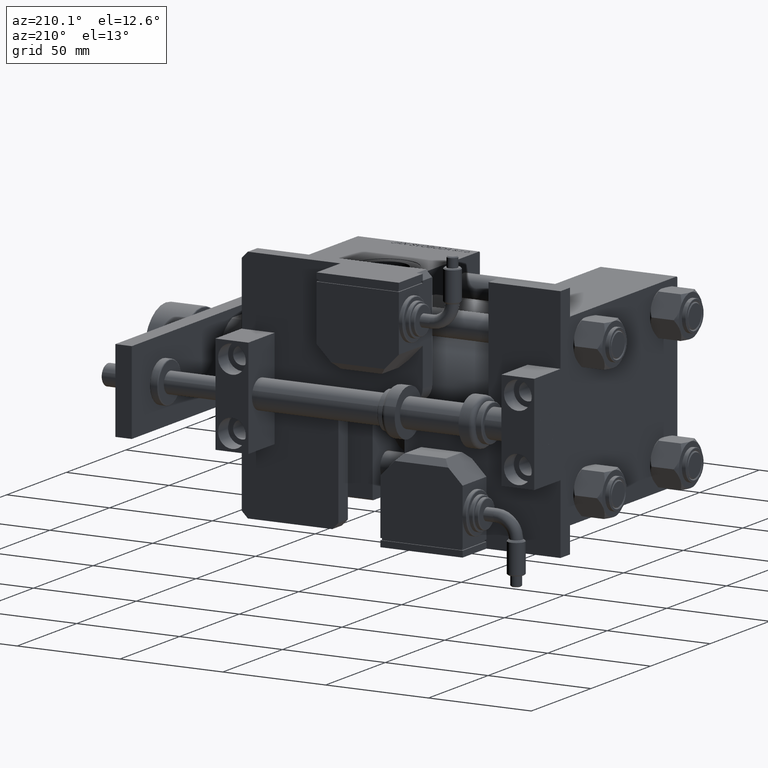
[diagram: clean part render]
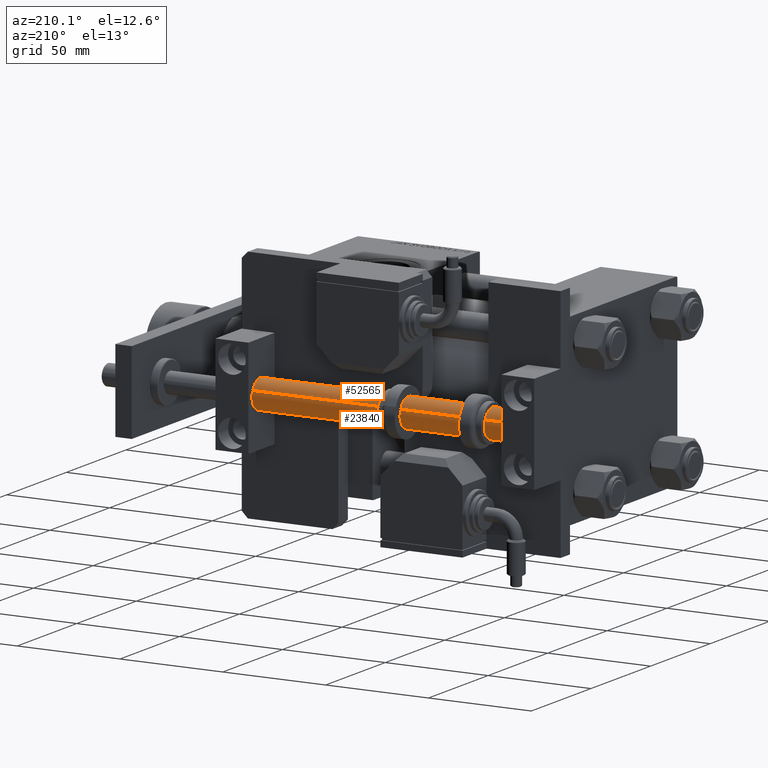
[diagram: same view with one multi-face feature highlighted, each face labeled with its STEP entity id]
A machine part, auxiliary view. The highlighted faces form ONE feature: a constant-radius fillet chain: 2 tangent blend faces with common blend radius 7 mm. The faces share edges in the B-rep.
Their STEP definitions:
[1] entity #23840 (Cylinder):
#994 = ORIENTED_EDGE ( 'NONE', *, *, #27776, .F. ) ;
#2686 = CARTESIAN_POINT ( 'NONE',  ( -7.000000000000000000, 0.000000000000000000, 155.0000000000000000 ) ) ;
#5148 = DIRECTION ( 'NONE',  ( -0.000000000000000000, -0.000000000000000000, -1.000000000000000000 ) ) ;
#8020 = DIRECTION ( 'NONE',  ( 1.000000000000000000, 0.000000000000000000, 0.000000000000000000 ) ) ;
#8232 = ORIENTED_EDGE ( 'NONE', *, *, #45763, .T. ) ;
#9653 = CARTESIAN_POINT ( 'NONE',  ( -7.000000000000000000, 0.000000000000000000, 155.0000000000000000 ) ) ;
#15127 = CARTESIAN_POINT ( 'NONE',  ( 7.000000000000000000, 8.572527594031473190E-16, 155.0000000000000000 ) ) ;
#16010 = CARTESIAN_POINT ( 'NONE',  ( 0.000000000000000000, 0.000000000000000000, 155.0000000000000000 ) ) ;
#16953 = FACE_OUTER_BOUND ( 'NONE', #38952, .T. ) ;
#18720 = LINE ( 'NONE', #9653, #33075 ) ;
#20913 = VECTOR ( 'NONE', #55231, 1000.000000000000000 ) ;
#21505 = DIRECTION ( 'NONE',  ( -0.000000000000000000, -0.000000000000000000, 1.000000000000000000 ) ) ;
#22144 = ORIENTED_EDGE ( 'NONE', *, *, #47050, .F. ) ;
#23840 = ADVANCED_FACE ( 'NONE', ( #16953 ), #35620, .T. ) ;
#23852 = CARTESIAN_POINT ( 'NONE',  ( 7.000000000000000000, 8.572527594031473190E-16, 0.3000000000000224709 ) ) ;
#26385 = ORIENTED_EDGE ( 'NONE', *, *, #26800, .T. ) ;
#26800 = EDGE_CURVE ( 'NONE', #43803, #30276, #42063, .T. ) ;
#27218 = AXIS2_PLACEMENT_3D ( 'NONE', #16010, #42656, #52872 ) ;
#27247 = CARTESIAN_POINT ( 'NONE',  ( 7.000000000000000000, 8.572527594031473190E-16, 155.0000000000000000 ) ) ;
#27776 = EDGE_CURVE ( 'NONE', #43557, #55441, #18720, .T. ) ;
#30276 = VERTEX_POINT ( 'NONE', #23852 ) ;
#33075 = VECTOR ( 'NONE', #40979, 1000.000000000000000 ) ;
#34676 = CARTESIAN_POINT ( 'NONE',  ( 0.000000000000000000, 0.000000000000000000, 0.3000000000000224709 ) ) ;
#35620 = CYLINDRICAL_SURFACE ( 'NONE', #56324, 7.000000000000000000 ) ;
#38952 = EDGE_LOOP ( 'NONE', ( #22144, #26385, #8232, #994 ) ) ;
#40979 = DIRECTION ( 'NONE',  ( -0.000000000000000000, -0.000000000000000000, -1.000000000000000000 ) ) ;
#41219 = AXIS2_PLACEMENT_3D ( 'NONE', #34676, #21505, #8020 ) ;
#42063 = LINE ( 'NONE', #15127, #20913 ) ;
#42656 = DIRECTION ( 'NONE',  ( 0.000000000000000000, 0.000000000000000000, 1.000000000000000000 ) ) ;
#43557 = VERTEX_POINT ( 'NONE', #2686 ) ;
#43803 = VERTEX_POINT ( 'NONE', #27247 ) ;
#44946 = CIRCLE ( 'NONE', #41219, 7.000000000000000000 ) ;
#44980 = CIRCLE ( 'NONE', #27218, 7.000000000000000000 ) ;
#44994 = DIRECTION ( 'NONE',  ( -1.000000000000000000, 0.000000000000000000, 0.000000000000000000 ) ) ;
#45763 = EDGE_CURVE ( 'NONE', #30276, #55441, #44946, .T. ) ;
#47050 = EDGE_CURVE ( 'NONE', #43803, #43557, #44980, .T. ) ;
#47712 = CARTESIAN_POINT ( 'NONE',  ( 0.000000000000000000, 0.000000000000000000, 155.0000000000000000 ) ) ;
#52872 = DIRECTION ( 'NONE',  ( 1.000000000000000000, 0.000000000000000000, 0.000000000000000000 ) ) ;
#52891 = CARTESIAN_POINT ( 'NONE',  ( -7.000000000000000000, 0.000000000000000000, 0.3000000000000224709 ) ) ;
#55231 = DIRECTION ( 'NONE',  ( -0.000000000000000000, -0.000000000000000000, -1.000000000000000000 ) ) ;
#55441 = VERTEX_POINT ( 'NONE', #52891 ) ;
#56324 = AXIS2_PLACEMENT_3D ( 'NONE', #47712, #5148, #44994 ) ;
[2] entity #52565 (Cylinder):
#2686 = CARTESIAN_POINT ( 'NONE',  ( -7.000000000000000000, 0.000000000000000000, 155.0000000000000000 ) ) ;
#6341 = DIRECTION ( 'NONE',  ( 0.000000000000000000, 0.000000000000000000, 1.000000000000000000 ) ) ;
#6965 = CYLINDRICAL_SURFACE ( 'NONE', #49352, 7.000000000000000000 ) ;
#8235 = CIRCLE ( 'NONE', #48453, 7.000000000000000000 ) ;
#9292 = AXIS2_PLACEMENT_3D ( 'NONE', #54660, #6341, #23628 ) ;
#9653 = CARTESIAN_POINT ( 'NONE',  ( -7.000000000000000000, 0.000000000000000000, 155.0000000000000000 ) ) ;
#11344 = ORIENTED_EDGE ( 'NONE', *, *, #13493, .T. ) ;
#13493 = EDGE_CURVE ( 'NONE', #55441, #30276, #8235, .T. ) ;
#14892 = CIRCLE ( 'NONE', #9292, 7.000000000000000000 ) ;
#15127 = CARTESIAN_POINT ( 'NONE',  ( 7.000000000000000000, 8.572527594031473190E-16, 155.0000000000000000 ) ) ;
#16781 = ORIENTED_EDGE ( 'NONE', *, *, #26800, .F. ) ;
#18720 = LINE ( 'NONE', #9653, #33075 ) ;
#20913 = VECTOR ( 'NONE', #55231, 1000.000000000000000 ) ;
#23628 = DIRECTION ( 'NONE',  ( 1.000000000000000000, 0.000000000000000000, 0.000000000000000000 ) ) ;
#23852 = CARTESIAN_POINT ( 'NONE',  ( 7.000000000000000000, 8.572527594031473190E-16, 0.3000000000000224709 ) ) ;
#24830 = DIRECTION ( 'NONE',  ( -0.000000000000000000, -0.000000000000000000, -1.000000000000000000 ) ) ;
#25122 = CARTESIAN_POINT ( 'NONE',  ( 0.000000000000000000, 0.000000000000000000, 155.0000000000000000 ) ) ;
#25694 = FACE_OUTER_BOUND ( 'NONE', #57764, .T. ) ;
#26800 = EDGE_CURVE ( 'NONE', #43803, #30276, #42063, .T. ) ;
#27247 = CARTESIAN_POINT ( 'NONE',  ( 7.000000000000000000, 8.572527594031473190E-16, 155.0000000000000000 ) ) ;
#27776 = EDGE_CURVE ( 'NONE', #43557, #55441, #18720, .T. ) ;
#30276 = VERTEX_POINT ( 'NONE', #23852 ) ;
#31224 = DIRECTION ( 'NONE',  ( 1.000000000000000000, 0.000000000000000000, 0.000000000000000000 ) ) ;
#33075 = VECTOR ( 'NONE', #40979, 1000.000000000000000 ) ;
#35504 = ORIENTED_EDGE ( 'NONE', *, *, #43145, .F. ) ;
#37417 = ORIENTED_EDGE ( 'NONE', *, *, #27776, .T. ) ;
#40873 = DIRECTION ( 'NONE',  ( -0.000000000000000000, -0.000000000000000000, 1.000000000000000000 ) ) ;
#40979 = DIRECTION ( 'NONE',  ( -0.000000000000000000, -0.000000000000000000, -1.000000000000000000 ) ) ;
#42063 = LINE ( 'NONE', #15127, #20913 ) ;
#43145 = EDGE_CURVE ( 'NONE', #43557, #43803, #14892, .T. ) ;
#43557 = VERTEX_POINT ( 'NONE', #2686 ) ;
#43803 = VERTEX_POINT ( 'NONE', #27247 ) ;
#44686 = CARTESIAN_POINT ( 'NONE',  ( 0.000000000000000000, 0.000000000000000000, 0.3000000000000224709 ) ) ;
#48453 = AXIS2_PLACEMENT_3D ( 'NONE', #44686, #40873, #31224 ) ;
#49352 = AXIS2_PLACEMENT_3D ( 'NONE', #25122, #24830, #55577 ) ;
#52565 = ADVANCED_FACE ( 'NONE', ( #25694 ), #6965, .T. ) ;
#52891 = CARTESIAN_POINT ( 'NONE',  ( -7.000000000000000000, 0.000000000000000000, 0.3000000000000224709 ) ) ;
#54660 = CARTESIAN_POINT ( 'NONE',  ( 0.000000000000000000, 0.000000000000000000, 155.0000000000000000 ) ) ;
#55231 = DIRECTION ( 'NONE',  ( -0.000000000000000000, -0.000000000000000000, -1.000000000000000000 ) ) ;
#55441 = VERTEX_POINT ( 'NONE', #52891 ) ;
#55577 = DIRECTION ( 'NONE',  ( -1.000000000000000000, 0.000000000000000000, 0.000000000000000000 ) ) ;
#57764 = EDGE_LOOP ( 'NONE', ( #16781, #35504, #37417, #11344 ) ) ;